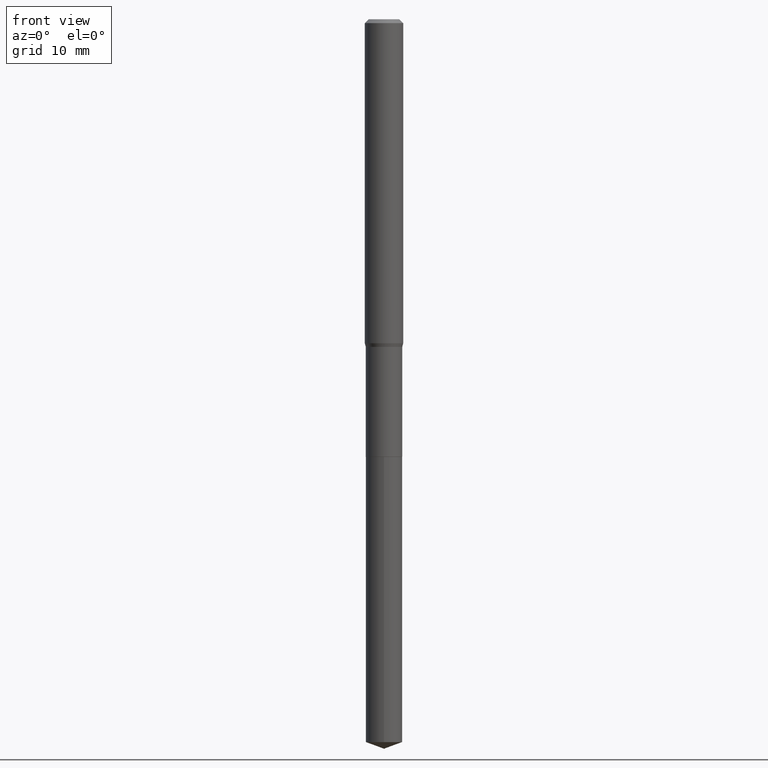
[diagram: clean part render]
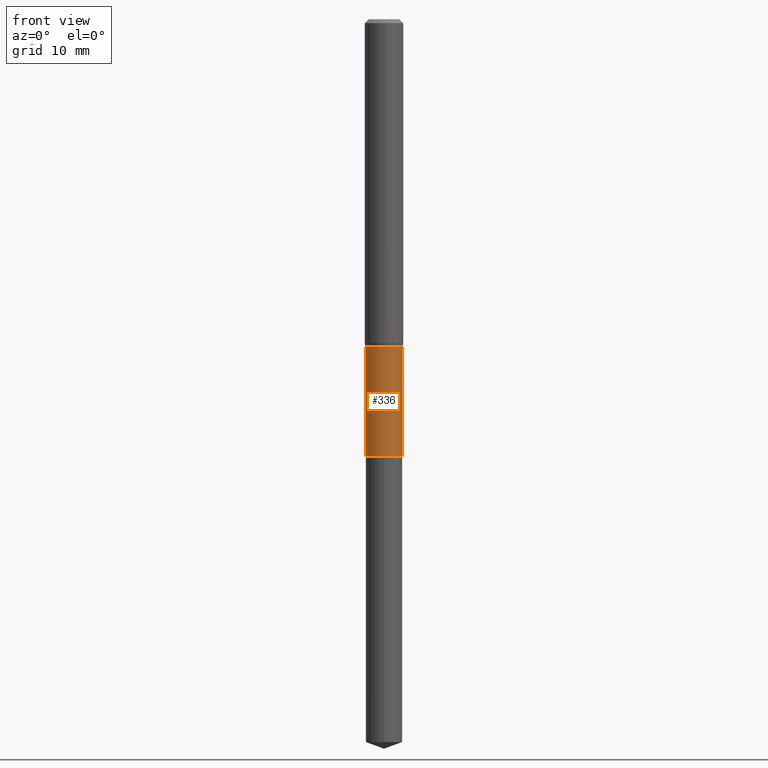
[diagram: same view with one face highlighted and labeled with its STEP entity id]
A machine part, front view. The second image highlights one B-rep face of the part: STEP entity #336.
In plain terms, the highlighted cylindrical surface (edge-blend (fillet) strip) has radius 1.8999 mm, axis along (-0, 0, 1).
Its self-contained STEP definition (entity closure, byte-faithful):
#1 = ORIENTED_EDGE ( 'NONE', *, *, #405, .F. ) ;
#2 = DIRECTION ( 'NONE',  ( 1.000000000000000000, -6.982962677686261977E-15, 0.000000000000000000 ) ) ;
#11 = FACE_OUTER_BOUND ( 'NONE', #319, .T. ) ;
#25 = CARTESIAN_POINT ( 'NONE',  ( -0.07479999999999997762, 5.314859663485547800E-16, -3.679363447510668680E-30 ) ) ;
#31 = CARTESIAN_POINT ( 'NONE',  ( 3.285976434870968470E-29, -4.691503475003534862E-15, -1.343699999999999894 ) ) ;
#36 = CARTESIAN_POINT ( 'NONE',  ( -0.07480000000000000537, -4.947521124631050713E-15, -1.794799999999999951 ) ) ;
#64 = EDGE_CURVE ( 'NONE', #421, #277, #281, .T. ) ;
#72 = VECTOR ( 'NONE', #206, 39.37007874015748143 ) ;
#110 = CIRCLE ( 'NONE', #205, 0.07480000000000000537 ) ;
#112 = VERTEX_POINT ( 'NONE', #147 ) ;
#118 = AXIS2_PLACEMENT_3D ( 'NONE', #298, #123, #268 ) ;
#123 = DIRECTION ( 'NONE',  ( -2.445468806185136597E-29, 3.491481338843145583E-15, 1.000000000000000000 ) ) ;
#146 = DIRECTION ( 'NONE',  ( 1.000000000000000000, -6.982962677686266711E-15, 0.000000000000000000 ) ) ;
#147 = CARTESIAN_POINT ( 'NONE',  ( 0.07480000000000000537, -6.788836315246609713E-15, -1.794799999999999951 ) ) ;
#158 = CYLINDRICAL_SURFACE ( 'NONE', #118, 0.07479999999999997762 ) ;
#205 = AXIS2_PLACEMENT_3D ( 'NONE', #360, #324, #2 ) ;
#206 = DIRECTION ( 'NONE',  ( -2.445468806185136877E-29, 3.491481338843145188E-15, 1.000000000000000000 ) ) ;
#218 = DIRECTION ( 'NONE',  ( -2.445468806185136597E-29, 3.491481338843145583E-15, 1.000000000000000000 ) ) ;
#266 = AXIS2_PLACEMENT_3D ( 'NONE', #31, #218, #146 ) ;
#268 = DIRECTION ( 'NONE',  ( 1.000000000000000000, -6.982962677686266711E-15, 4.876176775795935793E-29 ) ) ;
#276 = VECTOR ( 'NONE', #449, 39.37007874015748143 ) ;
#277 = VERTEX_POINT ( 'NONE', #464 ) ;
#281 = LINE ( 'NONE', #25, #72 ) ;
#291 = LINE ( 'NONE', #292, #276 ) ;
#292 = CARTESIAN_POINT ( 'NONE',  ( 0.07479999999999997762, -5.223256082909326032E-16, 3.647380228295358762E-30 ) ) ;
#298 = CARTESIAN_POINT ( 'NONE',  ( 0.000000000000000000, 0.000000000000000000, 0.000000000000000000 ) ) ;
#301 = ORIENTED_EDGE ( 'NONE', *, *, #459, .T. ) ;
#319 = EDGE_LOOP ( 'NONE', ( #322, #301, #359, #1 ) ) ;
#322 = ORIENTED_EDGE ( 'NONE', *, *, #64, .F. ) ;
#324 = DIRECTION ( 'NONE',  ( -2.445468806185136597E-29, 3.491481338843145583E-15, 1.000000000000000000 ) ) ;
#336 = ADVANCED_FACE ( 'NONE', ( #11 ), #158, .T. ) ;
#358 = CIRCLE ( 'NONE', #266, 0.07479999999999994986 ) ;
#359 = ORIENTED_EDGE ( 'NONE', *, *, #469, .T. ) ;
#360 = CARTESIAN_POINT ( 'NONE',  ( 4.389127413341082869E-29, -6.266510706955676913E-15, -1.794799999999999951 ) ) ;
#405 = EDGE_CURVE ( 'NONE', #277, #467, #358, .T. ) ;
#409 = CARTESIAN_POINT ( 'NONE',  ( 0.07479999999999994986, -5.213829083294466873E-15, -1.343699999999999894 ) ) ;
#421 = VERTEX_POINT ( 'NONE', #36 ) ;
#449 = DIRECTION ( 'NONE',  ( -2.445468806185136877E-29, 3.491481338843145188E-15, 1.000000000000000000 ) ) ;
#459 = EDGE_CURVE ( 'NONE', #421, #112, #110, .T. ) ;
#464 = CARTESIAN_POINT ( 'NONE',  ( -0.07479999999999994986, -4.947521124631050713E-15, -1.343699999999999894 ) ) ;
#467 = VERTEX_POINT ( 'NONE', #409 ) ;
#469 = EDGE_CURVE ( 'NONE', #112, #467, #291, .T. ) ;